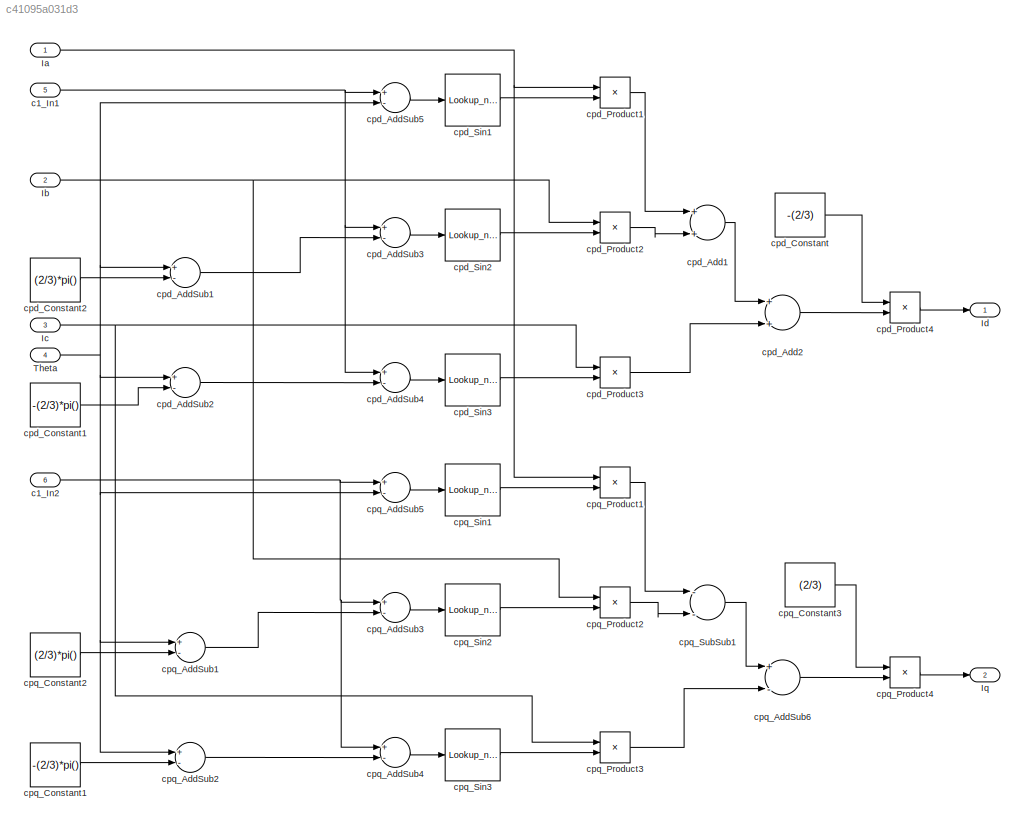
MODEL slx_c41095a031d3
KIND model
CONFIG AbsTol = auto
CONFIG EnableMultiTasking = off
CONFIG FixedStep = auto
CONFIG MaxStep = auto
CONFIG MinStep = auto
CONFIG RelTol = 1e-3
CONFIG SampleTimeConstraint = Unconstrained
CONFIG Solver = ode45
CONFIG SolverName = ode45
CONFIG StartTime = 0.0
CONFIG StopTime = 10.0
BLOCK [Inport] Ia
  IconDisplay = Port number
  OutDataTypeStr = fixdt(1,16,4)
BLOCK [Inport] Ib
  IconDisplay = Port number
  OutDataTypeStr = fixdt(1,16,4)
  Port = 2
BLOCK [Inport] Ic
  IconDisplay = Port number
  OutDataTypeStr = fixdt(1,16,4)
  Port = 3
BLOCK [Outport] Id
  IconDisplay = Port number
BLOCK [Outport] Iq
  IconDisplay = Port number
  Port = 2
BLOCK [Inport] Theta
  IconDisplay = Port number
  OutDataTypeStr = fixdt(1,16,4)
  Port = 4
BLOCK [Inport] c1_In1
  IconDisplay = Port number
  OutDataTypeStr = fixdt(1,16,4)
  Port = 5
BLOCK [Inport] c1_In2
  IconDisplay = Port number
  OutDataTypeStr = fixdt(1,16,4)
  Port = 6
BLOCK [Sum] cpd_Add1
  AccumDataTypeStr = fixdt(1,64,43)
  InputSameDT = off
  OutDataTypeStr = fixdt(1,64,43)
  Ports = [2, 1]
  SaturateOnIntegerOverflow = off
BLOCK [Sum] cpd_Add2
  AccumDataTypeStr = fixdt(1,64,43)
  InputSameDT = off
  OutDataTypeStr = fixdt(1,64,43)
  Ports = [2, 1]
  SaturateOnIntegerOverflow = off
BLOCK [Sum] cpd_AddSub1
  AccumDataTypeStr = fixdt(1,16,4)
  InputSameDT = off
  Inputs = +-
  OutDataTypeStr = fixdt(1,16,4)
  Ports = [2, 1]
  SaturateOnIntegerOverflow = off
BLOCK [Sum] cpd_AddSub2
  AccumDataTypeStr = fixdt(1,16,4)
  InputSameDT = off
  Inputs = +-
  OutDataTypeStr = fixdt(1,16,4)
  Ports = [2, 1]
  SaturateOnIntegerOverflow = off
BLOCK [Sum] cpd_AddSub3
  AccumDataTypeStr = fixdt(1,16,4)
  InputSameDT = off
  Inputs = +-
  OutDataTypeStr = fixdt(1,16,4)
  Ports = [2, 1]
  SaturateOnIntegerOverflow = off
BLOCK [Sum] cpd_AddSub4
  AccumDataTypeStr = fixdt(1,16,4)
  InputSameDT = off
  Inputs = +-
  OutDataTypeStr = fixdt(1,16,4)
  Ports = [2, 1]
  SaturateOnIntegerOverflow = off
BLOCK [Sum] cpd_AddSub5
  AccumDataTypeStr = fixdt(1,16,4)
  InputSameDT = off
  Inputs = +-
  OutDataTypeStr = fixdt(1,16,4)
  Ports = [2, 1]
  SaturateOnIntegerOverflow = off
BLOCK [Constant] cpd_Constant
  OutDataTypeStr = Inherit: Inherit via back propagation
  Value = -(2/3)
BLOCK [Constant] cpd_Constant1
  OutDataTypeStr = Inherit: Inherit via back propagation
  Value = -(2/3)*pi()
BLOCK [Constant] cpd_Constant2
  OutDataTypeStr = Inherit: Inherit via back propagation
  Value = (2/3)*pi()
BLOCK [Product] cpd_Product1
  InputSameDT = off
  OutDataTypeStr = fixdt(1,48,43)
  Ports = [2, 1]
  SaturateOnIntegerOverflow = off
BLOCK [Product] cpd_Product2
  InputSameDT = off
  OutDataTypeStr = fixdt(1,48,43)
  Ports = [2, 1]
  SaturateOnIntegerOverflow = off
BLOCK [Product] cpd_Product3
  InputSameDT = off
  OutDataTypeStr = fixdt(1,48,43)
  Ports = [2, 1]
  SaturateOnIntegerOverflow = off
BLOCK [Product] cpd_Product4
  InputSameDT = off
  OutDataTypeStr = fixdt(1,48,43)
  Ports = [2, 1]
  SaturateOnIntegerOverflow = off
BLOCK [Lookup_n-D] cpd_Sin1
  BeginIndexSearchUsingPreviousIndexResult = on
  BreakpointsForDimension1 = [0:1024]
  DiagnosticForOutOfRangeInput = Warning
  ExtrapMethod = Clip
  IndexSearchMethod = Evenly spaced points
  NumberOfTableDimensions = 1
  OutDataTypeStr = fixdt(1,16,15)
  Ports = [1, 1]
  RemoveProtectionInput = on
  Table = sin((0:1024))'
  UseLastTableValue = on
BLOCK [Lookup_n-D] cpd_Sin2
  BeginIndexSearchUsingPreviousIndexResult = on
  BreakpointsForDimension1 = [0:1024]
  DiagnosticForOutOfRangeInput = Warning
  ExtrapMethod = Clip
  IndexSearchMethod = Evenly spaced points
  NumberOfTableDimensions = 1
  OutDataTypeStr = fixdt(1,16,15)
  Ports = [1, 1]
  RemoveProtectionInput = on
  Table = sin((0:1024))'
  UseLastTableValue = on
BLOCK [Lookup_n-D] cpd_Sin3
  BeginIndexSearchUsingPreviousIndexResult = on
  BreakpointsForDimension1 = [0:1024]
  DiagnosticForOutOfRangeInput = Warning
  ExtrapMethod = Clip
  IndexSearchMethod = Evenly spaced points
  NumberOfTableDimensions = 1
  OutDataTypeStr = fixdt(1,16,15)
  Ports = [1, 1]
  RemoveProtectionInput = on
  Table = sin((0:1024))'
  UseLastTableValue = on
BLOCK [Sum] cpq_AddSub1
  AccumDataTypeStr = fixdt(1,16,4)
  InputSameDT = off
  Inputs = +-
  OutDataTypeStr = fixdt(1,16,4)
  Ports = [2, 1]
  SaturateOnIntegerOverflow = off
BLOCK [Sum] cpq_AddSub2
  AccumDataTypeStr = fixdt(1,16,4)
  InputSameDT = off
  Inputs = +-
  OutDataTypeStr = fixdt(1,16,4)
  Ports = [2, 1]
  SaturateOnIntegerOverflow = off
BLOCK [Sum] cpq_AddSub3
  AccumDataTypeStr = fixdt(1,16,4)
  InputSameDT = off
  Inputs = +-
  OutDataTypeStr = fixdt(1,16,4)
  Ports = [2, 1]
  SaturateOnIntegerOverflow = off
BLOCK [Sum] cpq_AddSub4
  AccumDataTypeStr = fixdt(1,16,4)
  InputSameDT = off
  Inputs = +-
  OutDataTypeStr = fixdt(1,16,4)
  Ports = [2, 1]
  SaturateOnIntegerOverflow = off
BLOCK [Sum] cpq_AddSub5
  AccumDataTypeStr = fixdt(1,16,4)
  InputSameDT = off
  Inputs = +-
  OutDataTypeStr = fixdt(1,16,4)
  Ports = [2, 1]
  SaturateOnIntegerOverflow = off
BLOCK [Sum] cpq_AddSub6
  AccumDataTypeStr = fixdt(1,64,43)
  InputSameDT = off
  Inputs = +-
  OutDataTypeStr = fixdt(1,64,43)
  Ports = [2, 1]
  SaturateOnIntegerOverflow = off
BLOCK [Constant] cpq_Constant1
  OutDataTypeStr = Inherit: Inherit via back propagation
  Value = -(2/3)*pi()
BLOCK [Constant] cpq_Constant2
  OutDataTypeStr = Inherit: Inherit via back propagation
  Value = (2/3)*pi()
BLOCK [Constant] cpq_Constant3
  OutDataTypeStr = Inherit: Inherit via back propagation
  Value = (2/3)
BLOCK [Product] cpq_Product1
  InputSameDT = off
  OutDataTypeStr = fixdt(1,48,43)
  Ports = [2, 1]
  SaturateOnIntegerOverflow = off
BLOCK [Product] cpq_Product2
  InputSameDT = off
  OutDataTypeStr = fixdt(1,48,43)
  Ports = [2, 1]
  SaturateOnIntegerOverflow = off
BLOCK [Product] cpq_Product3
  InputSameDT = off
  OutDataTypeStr = fixdt(1,48,43)
  Ports = [2, 1]
  SaturateOnIntegerOverflow = off
BLOCK [Product] cpq_Product4
  InputSameDT = off
  OutDataTypeStr = fixdt(1,48,43)
  Ports = [2, 1]
  SaturateOnIntegerOverflow = off
BLOCK [Lookup_n-D] cpq_Sin1
  BeginIndexSearchUsingPreviousIndexResult = on
  BreakpointsForDimension1 = [0:1024]
  DiagnosticForOutOfRangeInput = Warning
  ExtrapMethod = Clip
  IndexSearchMethod = Evenly spaced points
  NumberOfTableDimensions = 1
  OutDataTypeStr = fixdt(1,16,15)
  Ports = [1, 1]
  RemoveProtectionInput = on
  Table = sin((0:1024))'
  UseLastTableValue = on
BLOCK [Lookup_n-D] cpq_Sin2
  BeginIndexSearchUsingPreviousIndexResult = on
  BreakpointsForDimension1 = [0:1024]
  DiagnosticForOutOfRangeInput = Warning
  ExtrapMethod = Clip
  IndexSearchMethod = Evenly spaced points
  NumberOfTableDimensions = 1
  OutDataTypeStr = fixdt(1,16,15)
  Ports = [1, 1]
  RemoveProtectionInput = on
  Table = sin((0:1024))'
  UseLastTableValue = on
BLOCK [Lookup_n-D] cpq_Sin3
  BeginIndexSearchUsingPreviousIndexResult = on
  BreakpointsForDimension1 = [0:1024]
  DiagnosticForOutOfRangeInput = Warning
  ExtrapMethod = Clip
  IndexSearchMethod = Evenly spaced points
  NumberOfTableDimensions = 1
  OutDataTypeStr = fixdt(1,16,15)
  Ports = [1, 1]
  RemoveProtectionInput = on
  Table = sin((0:1024))'
  UseLastTableValue = on
BLOCK [Sum] cpq_SubSub1
  AccumDataTypeStr = fixdt(1,64,43)
  InputSameDT = off
  Inputs = --
  OutDataTypeStr = fixdt(1,64,43)
  Ports = [2, 1]
  SaturateOnIntegerOverflow = off
NET Ia:1 -> cpd_Product1:1, cpq_Product1:1
NET Ib:1 -> cpd_Product2:1, cpq_Product2:1
NET Ic:1 -> cpd_Product3:1, cpq_Product3:1
NET Theta:1 -> cpd_AddSub1:1, cpd_AddSub2:1, cpd_AddSub5:2, cpq_AddSub1:1, cpq_AddSub2:1, cpq_AddSub5:2
NET c1_In1:1 -> cpd_AddSub3:1, cpd_AddSub4:1, cpd_AddSub5:1
NET c1_In2:1 -> cpq_AddSub3:1, cpq_AddSub4:1, cpq_AddSub5:1
LINE cpd_Add1:1 -> cpd_Add2:1
LINE cpd_Add2:1 -> cpd_Product4:2
LINE cpd_AddSub1:1 -> cpd_AddSub3:2
LINE cpd_AddSub2:1 -> cpd_AddSub4:2
LINE cpd_AddSub3:1 -> cpd_Sin2:1
LINE cpd_AddSub4:1 -> cpd_Sin3:1
LINE cpd_AddSub5:1 -> cpd_Sin1:1
LINE cpd_Constant1:1 -> cpd_AddSub2:2
LINE cpd_Constant2:1 -> cpd_AddSub1:2
LINE cpd_Constant:1 -> cpd_Product4:1
LINE cpd_Product1:1 -> cpd_Add1:1
LINE cpd_Product2:1 -> cpd_Add1:2
LINE cpd_Product3:1 -> cpd_Add2:2
LINE cpd_Product4:1 -> Id:1
LINE cpd_Sin1:1 -> cpd_Product1:2
LINE cpd_Sin2:1 -> cpd_Product2:2
LINE cpd_Sin3:1 -> cpd_Product3:2
LINE cpq_AddSub1:1 -> cpq_AddSub3:2
LINE cpq_AddSub2:1 -> cpq_AddSub4:2
LINE cpq_AddSub3:1 -> cpq_Sin2:1
LINE cpq_AddSub4:1 -> cpq_Sin3:1
LINE cpq_AddSub5:1 -> cpq_Sin1:1
LINE cpq_AddSub6:1 -> cpq_Product4:2
LINE cpq_Constant1:1 -> cpq_AddSub2:2
LINE cpq_Constant2:1 -> cpq_AddSub1:2
LINE cpq_Constant3:1 -> cpq_Product4:1
LINE cpq_Product1:1 -> cpq_SubSub1:1
LINE cpq_Product2:1 -> cpq_SubSub1:2
LINE cpq_Product3:1 -> cpq_AddSub6:2
LINE cpq_Product4:1 -> Iq:1
LINE cpq_Sin1:1 -> cpq_Product1:2
LINE cpq_Sin2:1 -> cpq_Product2:2
LINE cpq_Sin3:1 -> cpq_Product3:2
LINE cpq_SubSub1:1 -> cpq_AddSub6:1
note: NET lines group one-source signal fan-out (src -> all destinations, sorted); 1:1 wires keep LINE
